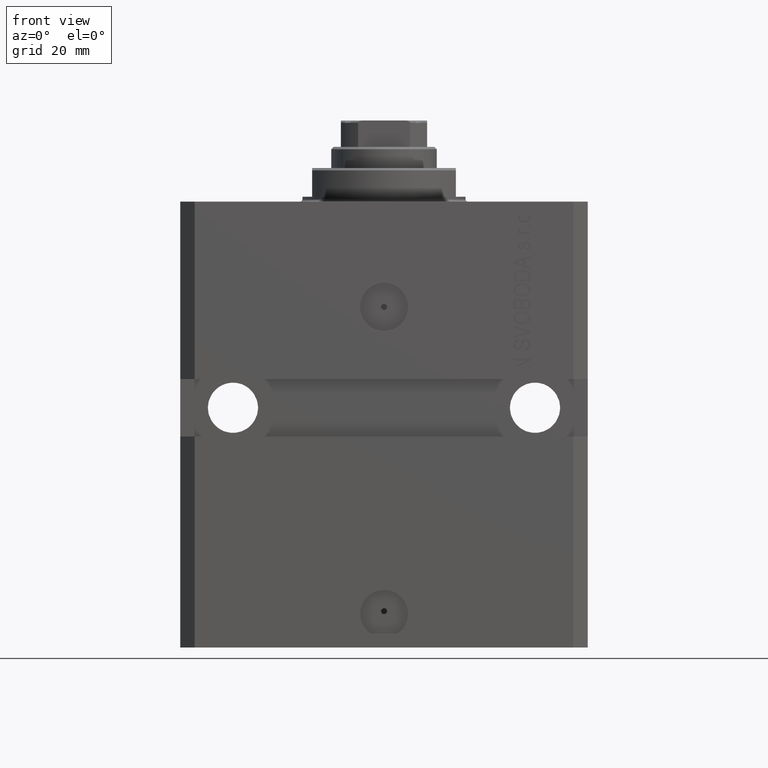
[diagram: clean part render]
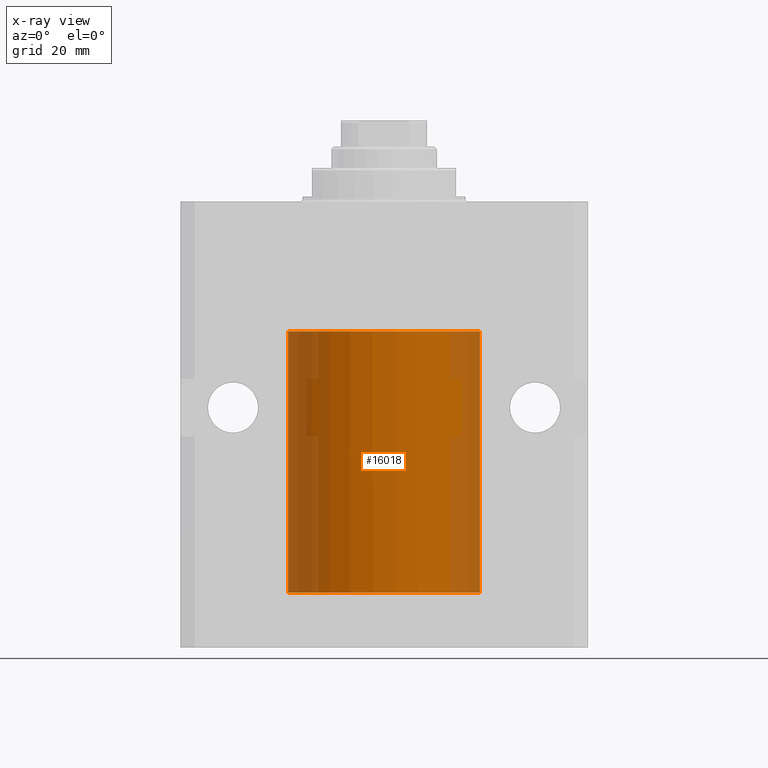
[diagram: x-ray — body ghosted, one internal face saturated and labeled with its STEP entity id]
A machine part, front view, then the same camera in x-ray: the body is ghosted and one INTERNAL B-rep face — a face not visible from any outside direction — is saturated and labeled: STEP entity #16018.
In plain terms, the highlighted cylindrical surface (partial cylindrical patch) has radius 20 mm, axis along (0, 0, 1).
Its self-contained STEP definition (entity closure, byte-faithful):
#1547 = EDGE_LOOP ( 'NONE', ( #2394, #23294, #21935, #42046, #26660, #26192 ) ) ;
#2059 = DIRECTION ( 'NONE',  ( -0.000000000000000000, -0.000000000000000000, 1.000000000000000000 ) ) ;
#2394 = ORIENTED_EDGE ( 'NONE', *, *, #19991, .F. ) ;
#2712 = EDGE_CURVE ( 'NONE', #11821, #19772, #19013, .T. ) ;
#4020 = CIRCLE ( 'NONE', #30776, 20.00000000000000000 ) ;
#4963 = VERTEX_POINT ( 'NONE', #16657 ) ;
#6290 = CARTESIAN_POINT ( 'NONE',  ( -19.99022768983530440, -0.6251375268966040677, -78.83566303088220195 ) ) ;
#8227 = B_SPLINE_CURVE_WITH_KNOTS ( 'NONE', 3,
 ( #33937, #30322, #44146, #13077, #26922, #6290, #41623, #38220, #31652, #28018 ),
 .UNSPECIFIED., .F., .F.,
 ( 4, 2, 2, 2, 4 ),
 ( 0.001954154509844221576, 0.002442582466643782209, 0.002931010423443342408, 0.003419438380242903041, 0.003907866337042463674 ),
 .UNSPECIFIED. ) ;
#8433 = VECTOR ( 'NONE', #2059, 1000.000000000000000 ) ;
#8614 = DIRECTION ( 'NONE',  ( -0.000000000000000000, -0.000000000000000000, 1.000000000000000000 ) ) ;
#8937 = CIRCLE ( 'NONE', #18345, 20.00000000000000000 ) ;
#9535 = CARTESIAN_POINT ( 'NONE',  ( 20.00000000000000000, 0.000000000000000000, -81.60000000000000853 ) ) ;
#9918 = CARTESIAN_POINT ( 'NONE',  ( -20.00000000000000000, 2.449293598294706513E-15, -81.60000000000000853 ) ) ;
#11584 = DIRECTION ( 'NONE',  ( 0.000000000000000000, 0.000000000000000000, 1.000000000000000000 ) ) ;
#11821 = VERTEX_POINT ( 'NONE', #31137 ) ;
#12241 = FACE_OUTER_BOUND ( 'NONE', #1547, .T. ) ;
#13077 = CARTESIAN_POINT ( 'NONE',  ( -19.99257639367449357, -0.5569510432580352388, -79.32709448625169557 ) ) ;
#13530 = DIRECTION ( 'NONE',  ( -0.000000000000000000, -0.000000000000000000, 1.000000000000000000 ) ) ;
#14493 = VERTEX_POINT ( 'NONE', #26455 ) ;
#16018 = ADVANCED_FACE ( 'NONE', ( #12241 ), #32881, .F. ) ;
#16165 = DIRECTION ( 'NONE',  ( 1.000000000000000000, 0.000000000000000000, 0.000000000000000000 ) ) ;
#16657 = CARTESIAN_POINT ( 'NONE',  ( 20.00000000000000000, 0.000000000000000000, -27.10000000000000142 ) ) ;
#17058 = CARTESIAN_POINT ( 'NONE',  ( -20.00000000000000000, 2.449293598294706513E-15, -27.10000000000000142 ) ) ;
#18345 = AXIS2_PLACEMENT_3D ( 'NONE', #26127, #30429, #16165 ) ;
#19013 = LINE ( 'NONE', #32856, #42563 ) ;
#19334 = VECTOR ( 'NONE', #13530, 1000.000000000000000 ) ;
#19772 = VERTEX_POINT ( 'NONE', #43867 ) ;
#19953 = LINE ( 'NONE', #9535, #8433 ) ;
#19991 = EDGE_CURVE ( 'NONE', #11821, #41309, #8937, .T. ) ;
#21935 = ORIENTED_EDGE ( 'NONE', *, *, #37701, .T. ) ;
#23294 = ORIENTED_EDGE ( 'NONE', *, *, #2712, .T. ) ;
#26127 = CARTESIAN_POINT ( 'NONE',  ( 0.000000000000000000, 0.000000000000000000, -81.60000000000000853 ) ) ;
#26192 = ORIENTED_EDGE ( 'NONE', *, *, #40729, .F. ) ;
#26455 = CARTESIAN_POINT ( 'NONE',  ( -20.00000000000000000, -1.124177324826063808E-14, -78.37500000000000000 ) ) ;
#26660 = ORIENTED_EDGE ( 'NONE', *, *, #37440, .T. ) ;
#26922 = CARTESIAN_POINT ( 'NONE',  ( -19.99023630310506761, -0.6248620367829604838, -79.16538138329534036 ) ) ;
#27003 = VERTEX_POINT ( 'NONE', #17058 ) ;
#28018 = CARTESIAN_POINT ( 'NONE',  ( -20.00000000000000000, -1.124177324826063808E-14, -78.37500000000000000 ) ) ;
#30322 = CARTESIAN_POINT ( 'NONE',  ( -20.00000000000000355, -0.1631318982819177366, -79.62500000000015632 ) ) ;
#30429 = DIRECTION ( 'NONE',  ( 0.000000000000000000, 0.000000000000000000, 1.000000000000000000 ) ) ;
#30776 = AXIS2_PLACEMENT_3D ( 'NONE', #36501, #11584, #36283 ) ;
#31137 = CARTESIAN_POINT ( 'NONE',  ( -20.00000000000000000, 2.449293598294706513E-15, -81.60000000000000853 ) ) ;
#31652 = CARTESIAN_POINT ( 'NONE',  ( -20.00000000000000000, -0.1651542110816439091, -78.37500000000001421 ) ) ;
#32856 = CARTESIAN_POINT ( 'NONE',  ( -20.00000000000000000, 2.449293598294706513E-15, -81.60000000000000853 ) ) ;
#32881 = CYLINDRICAL_SURFACE ( 'NONE', #34863, 20.00000000000000000 ) ;
#33937 = CARTESIAN_POINT ( 'NONE',  ( -20.00000000000010303, 3.580159286679549072E-13, -79.62500000000332534 ) ) ;
#34557 = CARTESIAN_POINT ( 'NONE',  ( 20.00000000000000000, 0.000000000000000000, -81.60000000000000853 ) ) ;
#34863 = AXIS2_PLACEMENT_3D ( 'NONE', #43074, #39903, #42847 ) ;
#36283 = DIRECTION ( 'NONE',  ( 1.000000000000000000, 0.000000000000000000, 0.000000000000000000 ) ) ;
#36501 = CARTESIAN_POINT ( 'NONE',  ( 0.000000000000000000, 0.000000000000000000, -27.10000000000000142 ) ) ;
#37440 = EDGE_CURVE ( 'NONE', #27003, #4963, #4020, .T. ) ;
#37701 = EDGE_CURVE ( 'NONE', #19772, #14493, #8227, .T. ) ;
#38220 = CARTESIAN_POINT ( 'NONE',  ( -19.99765984516762174, -0.3269569594424049930, -78.44291008943298493 ) ) ;
#39903 = DIRECTION ( 'NONE',  ( -0.000000000000000000, -0.000000000000000000, 1.000000000000000000 ) ) ;
#40729 = EDGE_CURVE ( 'NONE', #41309, #4963, #19953, .T. ) ;
#41309 = VERTEX_POINT ( 'NONE', #34557 ) ;
#41623 = CARTESIAN_POINT ( 'NONE',  ( -19.99255948581289033, -0.5575529953197770894, -78.67383335671266309 ) ) ;
#42046 = ORIENTED_EDGE ( 'NONE', *, *, #43704, .T. ) ;
#42563 = VECTOR ( 'NONE', #8614, 1000.000000000000000 ) ;
#42847 = DIRECTION ( 'NONE',  ( 1.000000000000000000, 0.000000000000000000, 0.000000000000000000 ) ) ;
#43074 = CARTESIAN_POINT ( 'NONE',  ( 0.000000000000000000, 0.000000000000000000, -81.60000000000000853 ) ) ;
#43704 = EDGE_CURVE ( 'NONE', #14493, #27003, #44596, .T. ) ;
#43867 = CARTESIAN_POINT ( 'NONE',  ( -20.00000000000010303, 3.580159286679549072E-13, -79.62500000000332534 ) ) ;
#44146 = CARTESIAN_POINT ( 'NONE',  ( -19.99767054355995555, -0.3263099029014857599, -79.55741108240768256 ) ) ;
#44596 = LINE ( 'NONE', #9918, #19334 ) ;